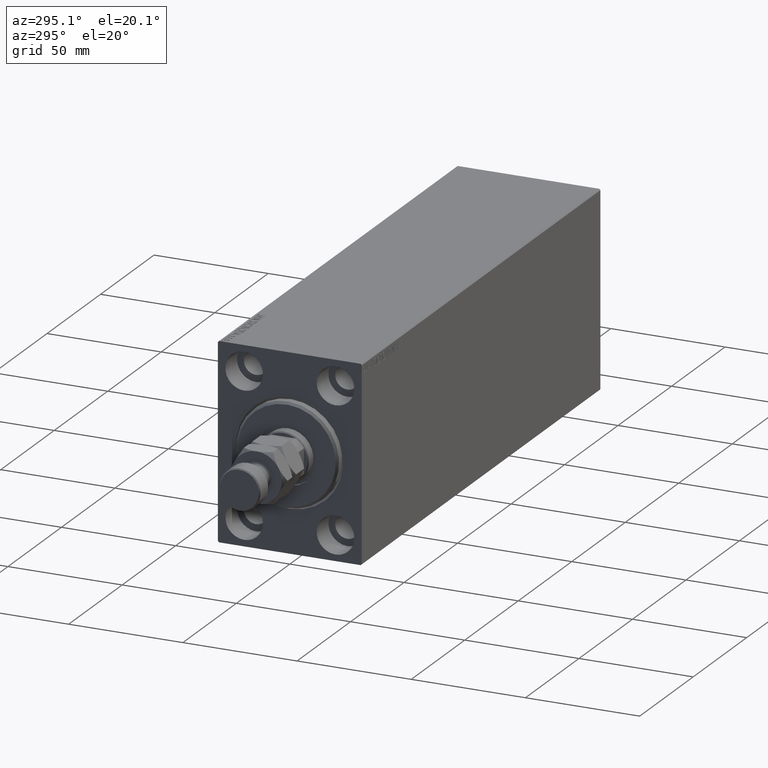
[diagram: clean part render]
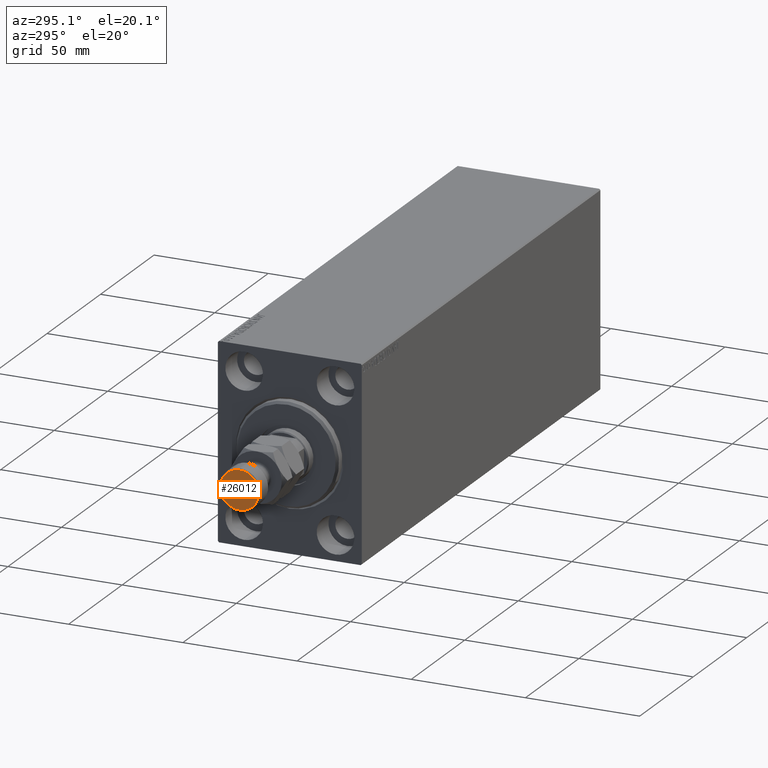
[diagram: same view with one face highlighted and labeled with its STEP entity id]
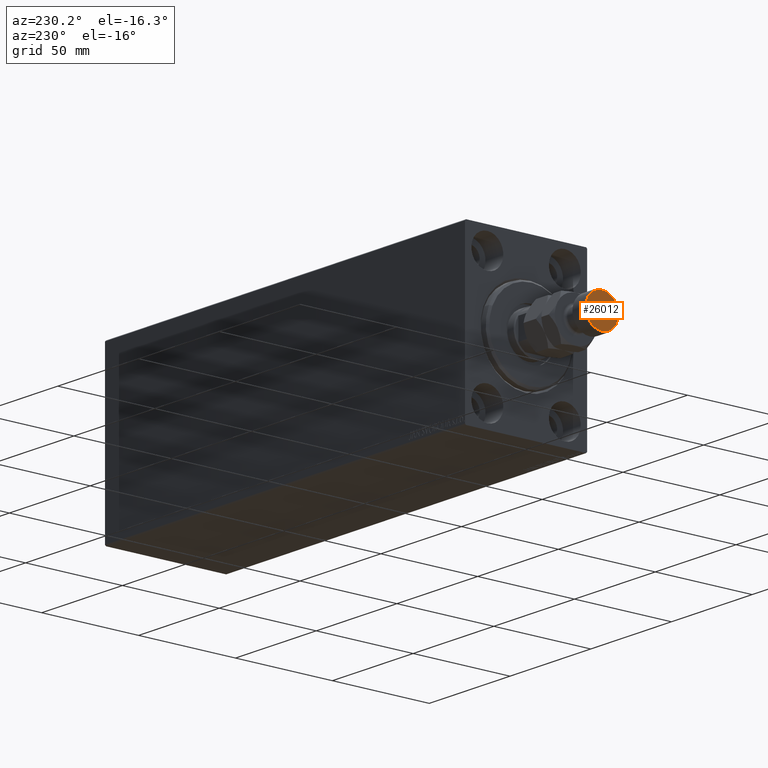
[diagram: same view with one face highlighted and labeled with its STEP entity id]
A machine part, auxiliary view. The second image highlights one B-rep face of the part: STEP entity #26012.
A second angle (auxiliary view) of the same face is appended — the face is thin or edge-on in the first view.
In plain terms, the highlighted planar face has unit normal (-1, 0, 0).
Its self-contained STEP definition (entity closure, byte-faithful):
#647 = EDGE_CURVE ( 'NONE', #34859, #38995, #13032, .T. ) ;
#3760 = EDGE_CURVE ( 'NONE', #38995, #34859, #31830, .T. ) ;
#4393 = PLANE ( 'NONE',  #20452 ) ;
#4701 = CARTESIAN_POINT ( 'NONE',  ( 0.000000000000000000, 0.000000000000000000, 35.00000000000000000 ) ) ;
#7136 = DIRECTION ( 'NONE',  ( 0.000000000000000000, 0.000000000000000000, 1.000000000000000000 ) ) ;
#7839 = DIRECTION ( 'NONE',  ( 1.000000000000000000, 0.000000000000000000, 0.000000000000000000 ) ) ;
#8316 = CARTESIAN_POINT ( 'NONE',  ( -8.499999999999992895, 0.000000000000000000, 35.00000000000000000 ) ) ;
#8368 = DIRECTION ( 'NONE',  ( 0.000000000000000000, 0.000000000000000000, 1.000000000000000000 ) ) ;
#11260 = CARTESIAN_POINT ( 'NONE',  ( 0.000000000000000000, 0.000000000000000000, 35.00000000000000000 ) ) ;
#13032 = CIRCLE ( 'NONE', #22595, 8.499999999999992895 ) ;
#15675 = CARTESIAN_POINT ( 'NONE',  ( 8.499999999999992895, 1.071565949253933532E-15, 35.00000000000000000 ) ) ;
#17484 = ORIENTED_EDGE ( 'NONE', *, *, #647, .T. ) ;
#20452 = AXIS2_PLACEMENT_3D ( 'NONE', #11260, #7136, #35173 ) ;
#20855 = AXIS2_PLACEMENT_3D ( 'NONE', #4701, #8368, #40064 ) ;
#22595 = AXIS2_PLACEMENT_3D ( 'NONE', #39306, #36313, #7839 ) ;
#26012 = ADVANCED_FACE ( 'NONE', ( #42285 ), #4393, .T. ) ;
#31532 = EDGE_LOOP ( 'NONE', ( #17484, #38064 ) ) ;
#31830 = CIRCLE ( 'NONE', #20855, 8.499999999999992895 ) ;
#34859 = VERTEX_POINT ( 'NONE', #8316 ) ;
#35173 = DIRECTION ( 'NONE',  ( 1.000000000000000000, 0.000000000000000000, -0.000000000000000000 ) ) ;
#36313 = DIRECTION ( 'NONE',  ( 0.000000000000000000, 0.000000000000000000, 1.000000000000000000 ) ) ;
#38064 = ORIENTED_EDGE ( 'NONE', *, *, #3760, .T. ) ;
#38995 = VERTEX_POINT ( 'NONE', #15675 ) ;
#39306 = CARTESIAN_POINT ( 'NONE',  ( 0.000000000000000000, 0.000000000000000000, 35.00000000000000000 ) ) ;
#40064 = DIRECTION ( 'NONE',  ( 1.000000000000000000, 0.000000000000000000, 0.000000000000000000 ) ) ;
#42285 = FACE_OUTER_BOUND ( 'NONE', #31532, .T. ) ;